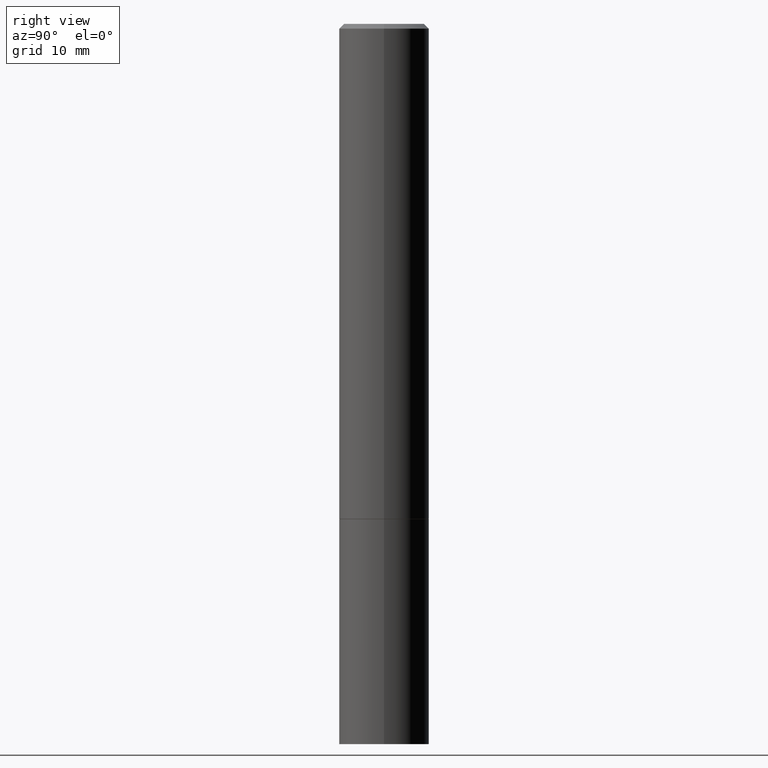
[diagram: clean part render]
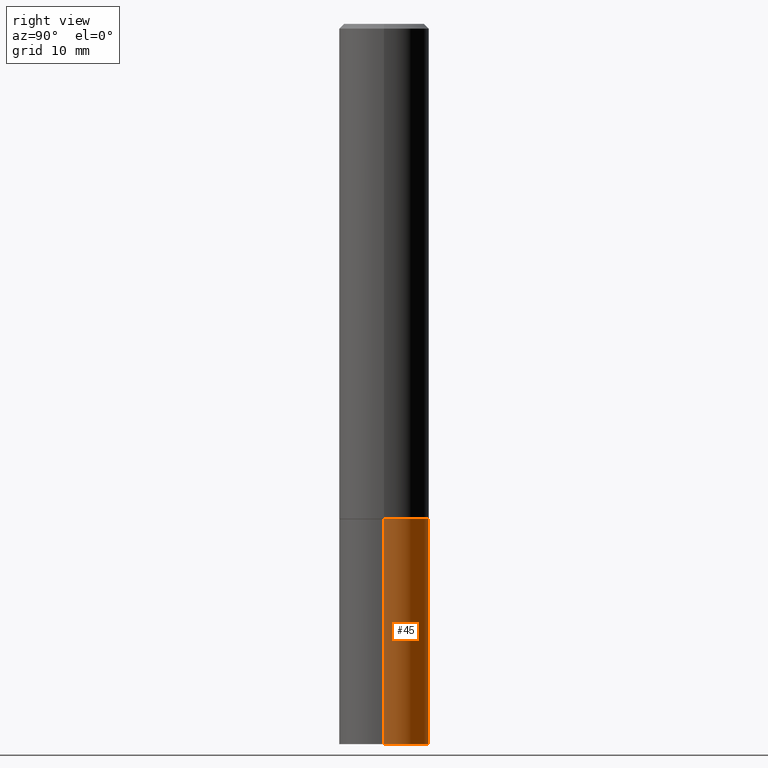
[diagram: same view with one face highlighted and labeled with its STEP entity id]
A machine part, right view. The second image highlights one B-rep face of the part: STEP entity #45.
In plain terms, the highlighted cylindrical surface (partial cylindrical patch) has radius 4.7625 mm, axis along (-0, 0, 1).
Its self-contained STEP definition (entity closure, byte-faithful):
#16 = LINE ( 'NONE', #77, #25 ) ;
#25 = VECTOR ( 'NONE', #347, 39.37007874015748143 ) ;
#33 = EDGE_CURVE ( 'NONE', #80, #331, #56, .T. ) ;
#45 = ADVANCED_FACE ( 'NONE', ( #251 ), #360, .T. ) ;
#51 = DIRECTION ( 'NONE',  ( -2.445468806185136597E-29, 3.491481338843145583E-15, 1.000000000000000000 ) ) ;
#53 = DIRECTION ( 'NONE',  ( 1.000000000000000000, -6.982962677686265922E-15, 4.876176775795935793E-29 ) ) ;
#54 = VERTEX_POINT ( 'NONE', #311 ) ;
#55 = CARTESIAN_POINT ( 'NONE',  ( -0.1875000000000000278, -7.505544509396524617E-15, -3.000000000000000444 ) ) ;
#56 = CIRCLE ( 'NONE', #72, 0.1875000000000000278 ) ;
#60 = CARTESIAN_POINT ( 'NONE',  ( 0.1875000000000000278, -1.309305502066175008E-15, 9.142831454617381013E-30 ) ) ;
#72 = AXIS2_PLACEMENT_3D ( 'NONE', #143, #51, #166 ) ;
#77 = CARTESIAN_POINT ( 'NONE',  ( -0.1875000000000000278, 1.332267629550188046E-15, -9.223003294227947991E-30 ) ) ;
#79 = ORIENTED_EDGE ( 'NONE', *, *, #319, .T. ) ;
#80 = VERTEX_POINT ( 'NONE', #284 ) ;
#117 = LINE ( 'NONE', #60, #352 ) ;
#132 = ORIENTED_EDGE ( 'NONE', *, *, #33, .F. ) ;
#141 = ORIENTED_EDGE ( 'NONE', *, *, #147, .F. ) ;
#143 = CARTESIAN_POINT ( 'NONE',  ( 5.043779412756844791E-29, -7.201180261363988578E-15, -2.062500000000000000 ) ) ;
#147 = EDGE_CURVE ( 'NONE', #54, #80, #117, .T. ) ;
#150 = AXIS2_PLACEMENT_3D ( 'NONE', #316, #154, #266 ) ;
#154 = DIRECTION ( 'NONE',  ( -2.445468806185136597E-29, 3.491481338843145583E-15, 1.000000000000000000 ) ) ;
#159 = VERTEX_POINT ( 'NONE', #55 ) ;
#166 = DIRECTION ( 'NONE',  ( 1.000000000000000000, -6.982962677686266711E-15, 0.000000000000000000 ) ) ;
#198 = CARTESIAN_POINT ( 'NONE',  ( 0.000000000000000000, 0.000000000000000000, 0.000000000000000000 ) ) ;
#215 = CARTESIAN_POINT ( 'NONE',  ( -0.1875000000000000278, -7.505544509396524617E-15, -2.062500000000000000 ) ) ;
#251 = FACE_OUTER_BOUND ( 'NONE', #356, .T. ) ;
#266 = DIRECTION ( 'NONE',  ( 1.000000000000000000, -6.982962677686261189E-15, 0.000000000000000000 ) ) ;
#271 = EDGE_CURVE ( 'NONE', #54, #159, #321, .T. ) ;
#282 = AXIS2_PLACEMENT_3D ( 'NONE', #198, #303, #53 ) ;
#284 = CARTESIAN_POINT ( 'NONE',  ( 0.1875000000000000278, -8.510485763430163586E-15, -2.062500000000000000 ) ) ;
#303 = DIRECTION ( 'NONE',  ( -2.445468806185136597E-29, 3.491481338843145583E-15, 1.000000000000000000 ) ) ;
#305 = ORIENTED_EDGE ( 'NONE', *, *, #271, .T. ) ;
#311 = CARTESIAN_POINT ( 'NONE',  ( 0.1875000000000000278, -1.178374951859561136E-14, -3.000000000000000444 ) ) ;
#316 = CARTESIAN_POINT ( 'NONE',  ( 7.336406418555409790E-29, -1.047444401652943635E-14, -3.000000000000000444 ) ) ;
#319 = EDGE_CURVE ( 'NONE', #159, #331, #16, .T. ) ;
#321 = CIRCLE ( 'NONE', #150, 0.1875000000000000278 ) ;
#331 = VERTEX_POINT ( 'NONE', #215 ) ;
#334 = DIRECTION ( 'NONE',  ( -2.445468806185136877E-29, 3.491481338843145188E-15, 1.000000000000000000 ) ) ;
#347 = DIRECTION ( 'NONE',  ( -2.445468806185136877E-29, 3.491481338843145188E-15, 1.000000000000000000 ) ) ;
#352 = VECTOR ( 'NONE', #334, 39.37007874015748143 ) ;
#356 = EDGE_LOOP ( 'NONE', ( #305, #79, #132, #141 ) ) ;
#360 = CYLINDRICAL_SURFACE ( 'NONE', #282, 0.1875000000000000278 ) ;